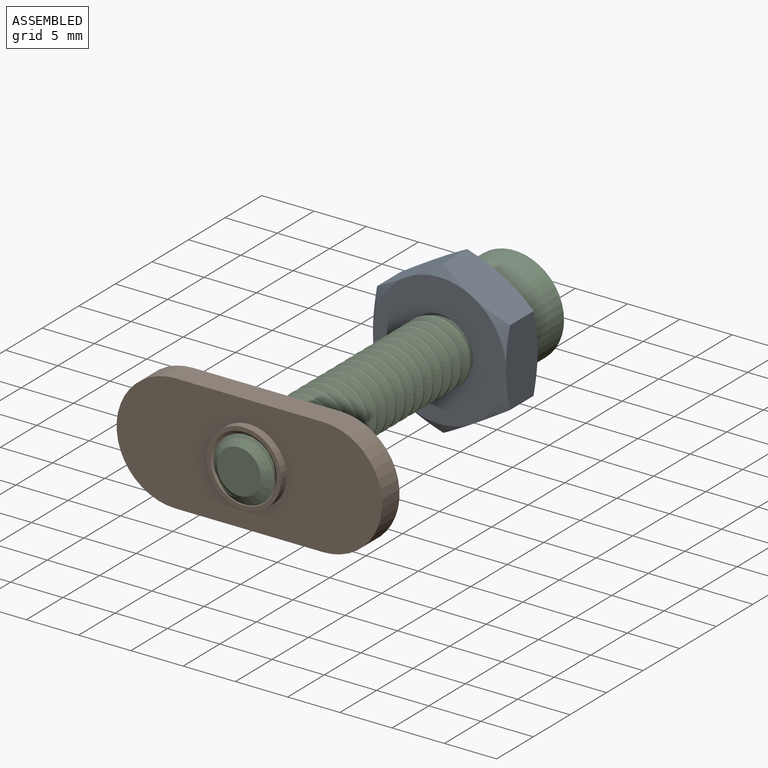
[diagram: assembled view]
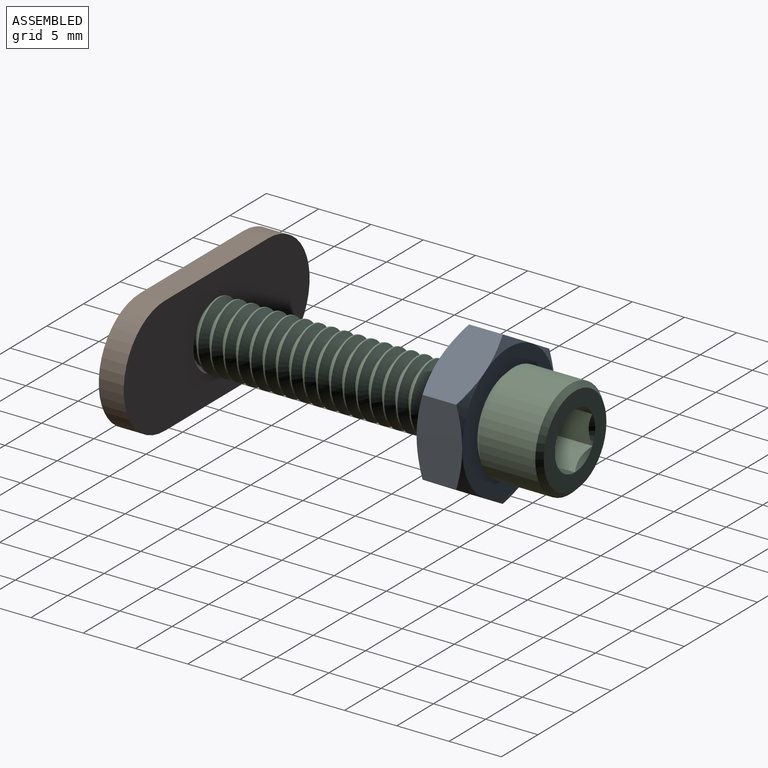
[diagram: assembled view, second angle]
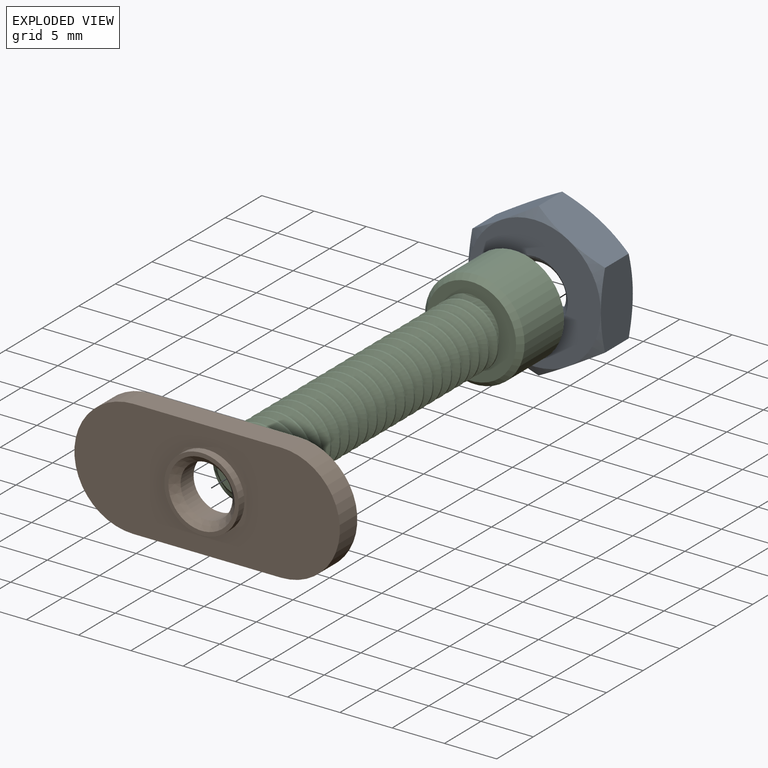
[diagram: exploded view]
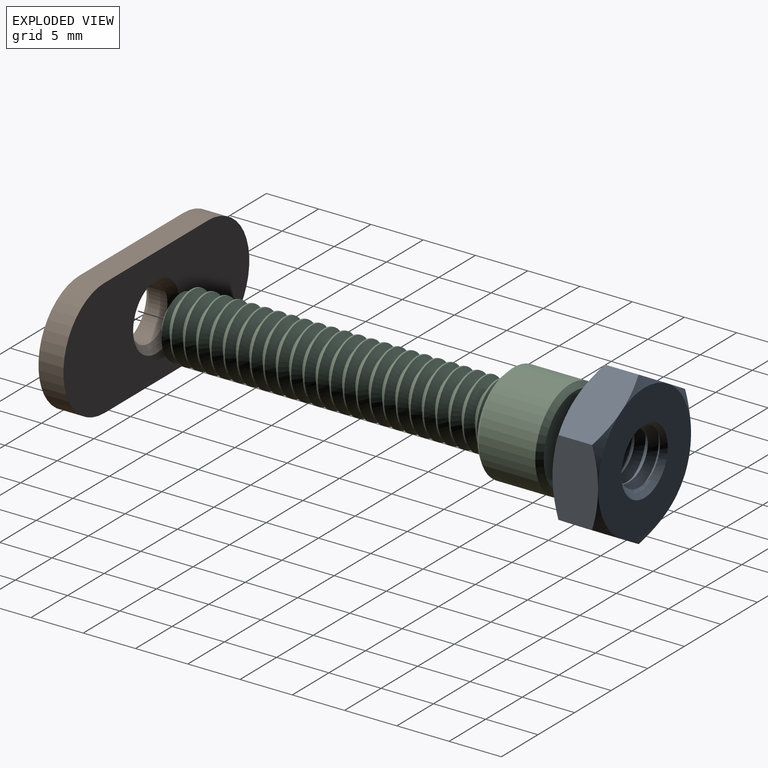
[diagram: exploded view, second angle]
ASSEMBLY  parts=3 mates=2
PART A: 26 faces, bbox 15.3x6x15.3 mm
  f0: bspline ~6.35x6.35mm, area 46.8mm2, adj f1,f11,f12,f19
  f1: cylinder r=2.35mm len=4.7mm, axis (0,-1,0), area 5mm2, adj f0,f2,f12,f19
  f2: bspline ~6.35x6.35mm, area 46.7mm2, adj f1,f11,f12,f19
  f3: plane 12.7x12.7mm, normal (0,1,0), area 95mm2, adj f11,f12,f13,f14,f15,f16,f17,f18
  f4: plane 6.95x4.98mm, normal (-0.5,0,-0.87), area 29.2mm2, adj f5,f9,f13,f18,f23,f24
  f5: plane 7.94x4.98mm, normal (-1,0,0), area 29.2mm2, adj f4,f6,f17,f18,f24,f25
  f6: plane 6.95x4.98mm, normal (-0.5,0,0.87), area 29.2mm2, adj f5,f7,f16,f17,f20,f25
  f7: plane 6.95x4.98mm, normal (0.5,0,0.87), area 29.2mm2, adj f6,f8,f15,f16,f20,f21
  f8: plane 7.94x4.98mm, normal (1,0,0), area 29.2mm2, adj f7,f9,f14,f15,f21,f22
  f9: plane 6.95x4.98mm, normal (0.5,0,-0.87), area 29.2mm2, adj f4,f8,f13,f14,f22,f23
  f10: plane 12.7x12.7mm, normal (0,-1,0), area 95mm2, adj f11,f19,f20,f21,f22,f23,f24,f25
  f11: cylinder r=3.17mm len=6.35mm, axis (0,-1,0), area 10.9mm2, adj f0,f2,f3,f10
  f12: cone r=3.17mm half-angle=45deg, axis (0,1,0), area 10.5mm2, adj f0,f1,f2,f3
  f13: cone r=6.35mm half-angle=60deg, axis (0,-1,0), area 4mm2, adj f3,f4,f9
  f14: cone r=6.35mm half-angle=60deg, axis (0,-1,0), area 4mm2, adj f3,f8,f9
  f15: cone r=6.35mm half-angle=60deg, axis (0,-1,0), area 4mm2, adj f3,f7,f8
  f16: cone r=6.35mm half-angle=60deg, axis (0,-1,0), area 4mm2, adj f3,f6,f7
  f17: cone r=6.35mm half-angle=60deg, axis (0,-1,0), area 4mm2, adj f3,f5,f6
  f18: cone r=6.35mm half-angle=60deg, axis (0,-1,0), area 4mm2, adj f3,f4,f5
  f19: cone r=3.17mm half-angle=45deg, axis (0,-1,0), area 10.5mm2, adj f0,f1,f2,f10
  f20: cone r=6.35mm half-angle=60deg, axis (0,1,0), area 4mm2, adj f6,f7,f10
  f21: cone r=6.35mm half-angle=60deg, axis (0,1,0), area 4mm2, adj f7,f8,f10
  f22: cone r=6.35mm half-angle=60deg, axis (0,1,0), area 4mm2, adj f8,f9,f10
  f23: cone r=6.35mm half-angle=60deg, axis (0,1,0), area 4mm2, adj f4,f9,f10
  f24: cone r=6.35mm half-angle=60deg, axis (0,1,0), area 4mm2, adj f4,f5,f10
  f25: cone r=6.35mm half-angle=60deg, axis (0,1,0), area 4mm2, adj f5,f6,f10
PART B: 11 faces, bbox 25.4x11.3x3.1 mm
  f0: plane 25.4x11.25mm, normal (0,0,-1), area 227mm2, adj f3,f4,f5,f6,f10
  f1: cylinder r=3.57mm len=7.14mm, axis (0,0,1), area 17.1mm2, adj f2,f7
  f2: plane 25.4x11.25mm, normal (0,0,1), area 218.6mm2, adj f1,f3,f4,f5,f6
  f3: plane 14.15x2.39mm, normal (0,1,0), area 33.8mm2, adj f0,f2,f4,f6
  f4: cylinder r=5.63mm len=11.25mm, axis (0,0,1), area 42.2mm2, adj f0,f2,f3,f5
  f5: plane 14.15x2.39mm, normal (0,-1,0), area 33.8mm2, adj f0,f2,f4,f6
  f6: cylinder r=5.63mm len=11.25mm, axis (0,0,1), area 42.2mm2, adj f0,f2,f3,f5
  f7: plane 7.14x7.14mm, normal (0,0,1), area 8.3mm2, adj f1,f8
  f8: cone r=3.17mm half-angle=45deg, axis (0,0,1), area 17.3mm2, adj f7,f9
  f9: cylinder r=2.49mm len=4.98mm, axis (0,0,1), area 27.8mm2, adj f8,f10
  f10: cone r=2.49mm half-angle=45deg, axis (0,0,-1), area 17.3mm2, adj f0,f9
PART C: 24 faces, bbox 10.6x10.6x39.6 mm
  f0: cylinder r=3.17mm len=30.99mm, axis (0,0,1), area -36.4mm2, adj f1,f2,f4,f8
  f1: bspline ~32.86x7.33mm, area 407.7mm2, adj f0,f3,f4,f8
  f2: bspline ~32.23x7.33mm, area 408mm2, adj f0,f3,f4,f8
  f3: cylinder r=2.35mm len=31.57mm, axis (0,0,-1), area 39.1mm2, adj f1,f2,f4,f8
  f4: cone r=2.1mm half-angle=55deg, axis (0,0,-1), area 12.7mm2, adj f0,f1,f2,f3,f5
  f5: plane 4.19x4.19mm, normal (0,0,1), area 13.8mm2, adj f4
  f6: cylinder r=4.76mm len=9.53mm, axis (0,0,1), area 161.5mm2, adj f22,f23
  f7: plane 8.57x8.57mm, normal (0,0,-1), area 34mm2, adj f9,f10,f11,f12,f13,f14,f22
  f8: plane 9.07x9.07mm, normal (0,0,1), area 33.5mm2, adj f0,f1,f2,f3,f23
  f9: cone r=2.75mm half-angle=45deg, axis (0,0,-1), area 0mm2, adj f7,f16
  f10: cone r=2.75mm half-angle=45deg, axis (0,0,-1), area 0mm2, adj f7,f17
  f11: cone r=2.75mm half-angle=45deg, axis (0,0,-1), area 0mm2, adj f7,f18
  f12: cone r=2.75mm half-angle=45deg, axis (0,0,-1), area 0mm2, adj f7,f19
  f13: cone r=2.75mm half-angle=45deg, axis (0,0,-1), area 0mm2, adj f7,f20
  f14: cone r=2.75mm half-angle=45deg, axis (0,0,-1), area 0mm2, adj f7,f21
  f15: plane 5.5x4.76mm, normal (0,0,-1), area 19.6mm2, adj f16,f17,f18,f19,f20,f21
  f16: plane 4.61x3.42mm, normal (-0.5,-0.87,0), area 9.2mm2, adj f9,f15,f17,f21
  f17: plane 4.62x3.8mm, normal (-1,0,0), area 9.2mm2, adj f10,f15,f16,f18
  f18: plane 4.61x3.42mm, normal (-0.5,0.87,0), area 9.2mm2, adj f11,f15,f17,f19
  f19: plane 4.61x3.42mm, normal (0.5,0.87,0), area 9.2mm2, adj f12,f15,f18,f20
  f20: plane 4.62x3.8mm, normal (1,0,0), area 9.2mm2, adj f13,f15,f19,f21
  f21: plane 4.61x3.42mm, normal (0.5,-0.87,0), area 9.2mm2, adj f14,f15,f16,f20
  f22: cone r=4.29mm half-angle=45deg, axis (0,0,1), area 19.1mm2, adj f6,f7
  f23: cone r=4.76mm half-angle=45deg, axis (0,0,-1), area 19.1mm2, adj f6,f8
PLACE A rot(axis=(1,0,0),180deg) t=(-7.2,17.47,-36.16)mm
PLACE B rot(axis=(1,0,0),90deg) t=(-7.2,-9.48,-36.16)mm
PLACE C rot(axis=(1,0,0),90deg) t=(-7.2,-12.09,-36.16)mm
MATE fastened C.f0 <-> B.f1  axis (0,-1,0) through (-7.2,-12.09,-36.16)mm
MATE fastened C.f0 <-> A.f11  axis (0,-1,0) through (-7.2,19.66,-36.16)mm
